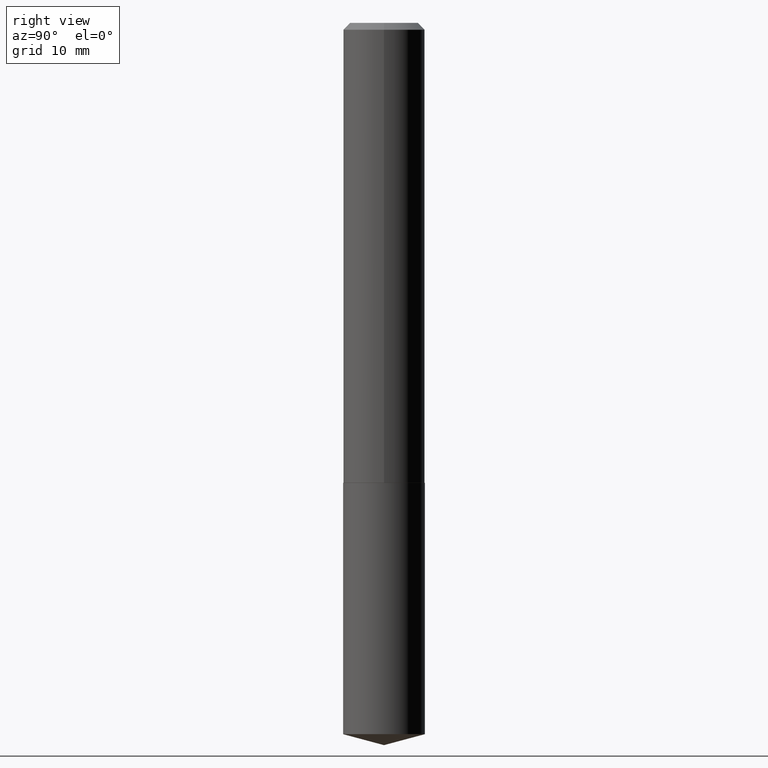
[diagram: clean part render]
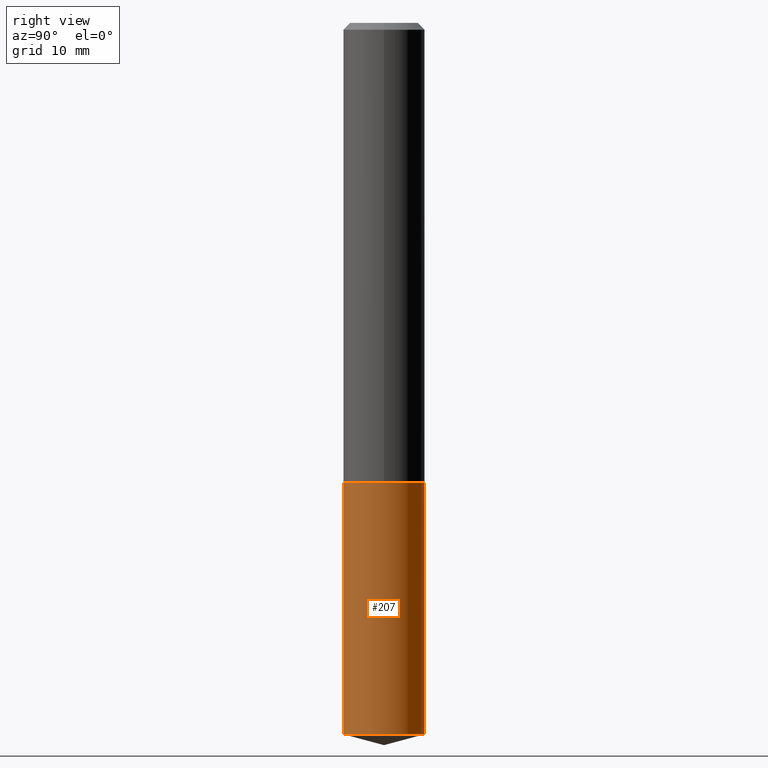
[diagram: same view with one face highlighted and labeled with its STEP entity id]
A machine part, right view. The second image highlights one B-rep face of the part: STEP entity #207.
In plain terms, the highlighted cylindrical surface (partial cylindrical patch) has radius 4.7498 mm, axis along (-0, 0, 1).
Its self-contained STEP definition (entity closure, byte-faithful):
#1 = VERTEX_POINT ( 'NONE', #124 ) ;
#13 = EDGE_CURVE ( 'NONE', #181, #119, #117, .T. ) ;
#24 = EDGE_CURVE ( 'NONE', #181, #261, #258, .T. ) ;
#29 = DIRECTION ( 'NONE',  ( -2.445529047864753250E-29, 3.491395069329191729E-15, 1.000000000000000000 ) ) ;
#35 = CARTESIAN_POINT ( 'NONE',  ( 1.328714915871438620E-15, 0.1869999999999926721, -2.106300000000000949 ) ) ;
#50 = DIRECTION ( 'NONE',  ( -6.982962677686266711E-15, -1.000000000000000000, 2.921762560068730595E-15 ) ) ;
#70 = CARTESIAN_POINT ( 'NONE',  ( 5.150890946467754134E-29, -7.354107144005318601E-15, -2.106300000000000505 ) ) ;
#94 = DIRECTION ( 'NONE',  ( -2.445529047864752970E-29, 3.491395069329191335E-15, 1.000000000000000000 ) ) ;
#95 = CARTESIAN_POINT ( 'NONE',  ( 7.964945328390054488E-29, -1.137163275975956234E-14, -3.256993501015380321 ) ) ;
#97 = CARTESIAN_POINT ( 'NONE',  ( 5.150890946467754134E-29, -7.354107144005318601E-15, -2.106300000000000505 ) ) ;
#104 = CARTESIAN_POINT ( 'NONE',  ( -1.305814020727252721E-15, -0.1870000000000114626, -3.256993501015379877 ) ) ;
#105 = AXIS2_PLACEMENT_3D ( 'NONE', #97, #94, #317 ) ;
#117 = CIRCLE ( 'NONE', #229, 0.1869999999999999996 ) ;
#119 = VERTEX_POINT ( 'NONE', #141 ) ;
#124 = CARTESIAN_POINT ( 'NONE',  ( 1.328714915871467217E-15, 0.1869999999999926998, -2.106300000000000949 ) ) ;
#133 = FACE_OUTER_BOUND ( 'NONE', #366, .T. ) ;
#141 = CARTESIAN_POINT ( 'NONE',  ( 1.328714915871467414E-15, 0.1869999999999887030, -3.256993501015380765 ) ) ;
#145 = EDGE_CURVE ( 'NONE', #261, #1, #151, .T. ) ;
#150 = DIRECTION ( 'NONE',  ( -2.445529047864753250E-29, 3.491395069329191729E-15, 1.000000000000000000 ) ) ;
#151 = CIRCLE ( 'NONE', #105, 0.1869999999999999996 ) ;
#181 = VERTEX_POINT ( 'NONE', #104 ) ;
#189 = ORIENTED_EDGE ( 'NONE', *, *, #24, .F. ) ;
#199 = DIRECTION ( 'NONE',  ( -2.445529047864752970E-29, 3.491395069329191335E-15, 1.000000000000000000 ) ) ;
#207 = ADVANCED_FACE ( 'NONE', ( #133 ), #357, .T. ) ;
#229 = AXIS2_PLACEMENT_3D ( 'NONE', #95, #199, #289 ) ;
#251 = LINE ( 'NONE', #35, #273 ) ;
#258 = LINE ( 'NONE', #345, #378 ) ;
#261 = VERTEX_POINT ( 'NONE', #377 ) ;
#262 = DIRECTION ( 'NONE',  ( -2.445529047864752970E-29, 3.491395069329191335E-15, 1.000000000000000000 ) ) ;
#273 = VECTOR ( 'NONE', #150, 39.37007874015748143 ) ;
#289 = DIRECTION ( 'NONE',  ( -6.982962677686266711E-15, -1.000000000000000000, 2.921762560068730595E-15 ) ) ;
#293 = AXIS2_PLACEMENT_3D ( 'NONE', #70, #262, #50 ) ;
#304 = ORIENTED_EDGE ( 'NONE', *, *, #13, .T. ) ;
#317 = DIRECTION ( 'NONE',  ( -6.982962677686266711E-15, -1.000000000000000000, 2.921762560068730595E-15 ) ) ;
#345 = CARTESIAN_POINT ( 'NONE',  ( -1.305814020727280331E-15, -0.1870000000000073548, -2.106300000000000061 ) ) ;
#357 = CYLINDRICAL_SURFACE ( 'NONE', #293, 0.1869999999999999996 ) ;
#364 = EDGE_CURVE ( 'NONE', #119, #1, #251, .T. ) ;
#366 = EDGE_LOOP ( 'NONE', ( #304, #388, #367, #189 ) ) ;
#367 = ORIENTED_EDGE ( 'NONE', *, *, #145, .F. ) ;
#377 = CARTESIAN_POINT ( 'NONE',  ( -1.305814020727280331E-15, -0.1870000000000073548, -2.106300000000000061 ) ) ;
#378 = VECTOR ( 'NONE', #29, 39.37007874015748143 ) ;
#388 = ORIENTED_EDGE ( 'NONE', *, *, #364, .T. ) ;